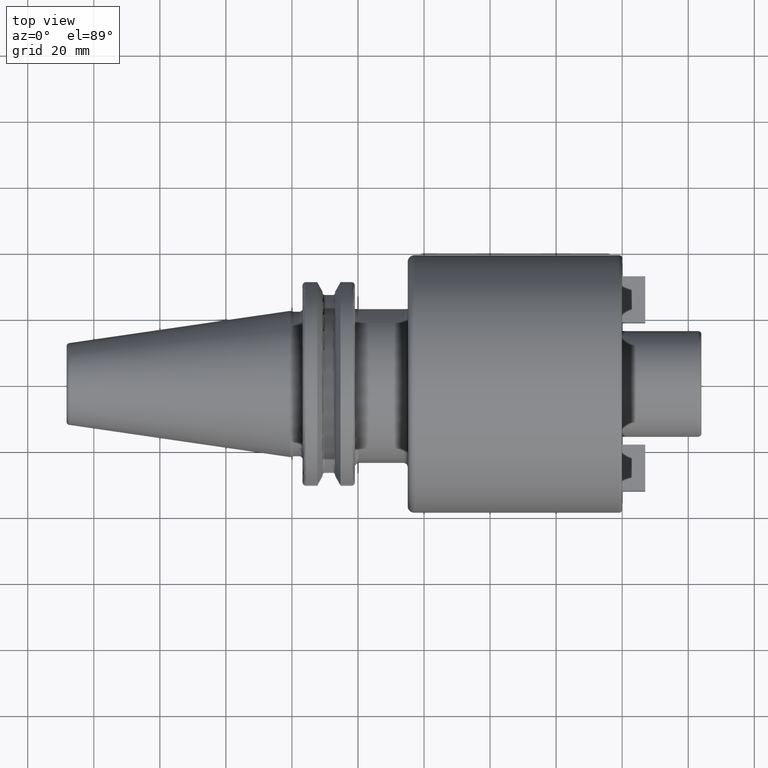
[diagram: clean part render]
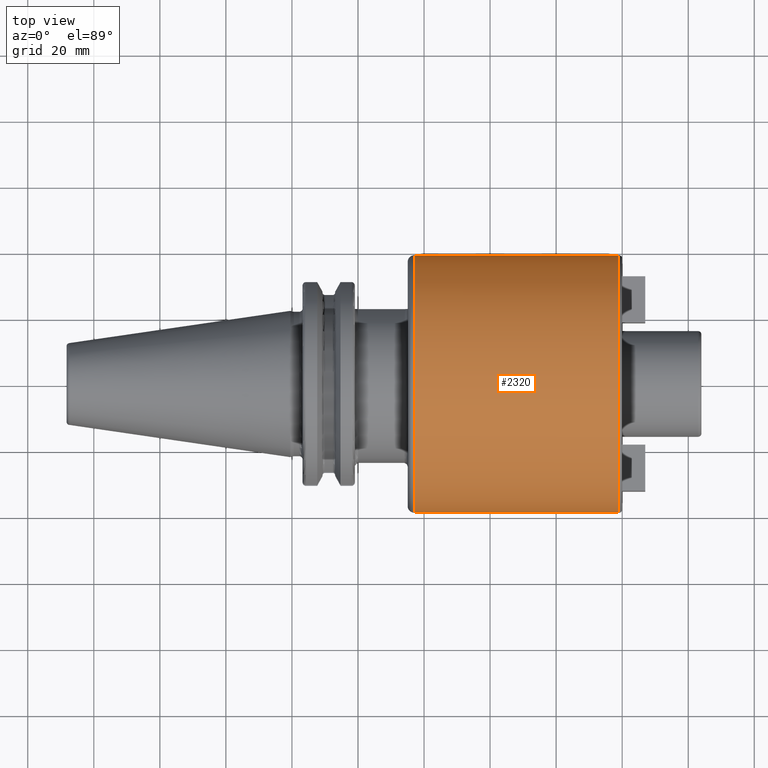
[diagram: same view with one face highlighted and labeled with its STEP entity id]
A machine part, top view. The second image highlights one B-rep face of the part: STEP entity #2320.
In plain terms, the highlighted cylindrical surface (partial cylindrical patch) has radius 39 mm, axis along (1, 0, 0).
Its self-contained STEP definition (entity closure, byte-faithful):
#377=CARTESIAN_POINT('',(9.9E1,0.E0,0.E0));
#378=DIRECTION('',(1.E0,0.E0,0.E0));
#379=DIRECTION('',(0.E0,1.E0,0.E0));
#380=AXIS2_PLACEMENT_3D('',#377,#378,#379);
#382=CARTESIAN_POINT('',(3.705E1,0.E0,0.E0));
#383=DIRECTION('',(-1.E0,0.E0,0.E0));
#384=DIRECTION('',(0.E0,-1.E0,0.E0));
#385=AXIS2_PLACEMENT_3D('',#382,#383,#384);
#402=DIRECTION('',(-1.E0,0.E0,3.337641570171E-13));
#403=VECTOR('',#402,6.195E1);
#404=CARTESIAN_POINT('',(9.9E1,3.9E1,-7.137335452005E-13));
#405=LINE('',#404,#403);
#411=DIRECTION('',(-1.E0,0.E0,-3.338228491948E-13));
#412=VECTOR('',#411,6.195E1);
#413=CARTESIAN_POINT('',(9.9E1,-3.9E1,7.125395145713E-13));
#414=LINE('',#413,#412);
#1754=CARTESIAN_POINT('',(9.9E1,-3.9E1,0.E0));
#1755=CARTESIAN_POINT('',(9.9E1,3.9E1,0.E0));
#1756=VERTEX_POINT('',#1754);
#1757=VERTEX_POINT('',#1755);
#1766=CARTESIAN_POINT('',(3.705E1,3.9E1,1.996295598201E-11));
#1767=VERTEX_POINT('',#1766);
#1822=CARTESIAN_POINT('',(3.705E1,-3.9E1,0.E0));
#1823=VERTEX_POINT('',#1822);
#2306=CARTESIAN_POINT('',(1.38025E1,0.E0,0.E0));
#2307=DIRECTION('',(1.E0,0.E0,0.E0));
#2308=DIRECTION('',(0.E0,-1.E0,0.E0));
#2309=AXIS2_PLACEMENT_3D('',#2306,#2307,#2308);
#2310=CYLINDRICAL_SURFACE('',#2309,3.9E1);
#2312=ORIENTED_EDGE('',*,*,#2311,.T.);
#2314=ORIENTED_EDGE('',*,*,#2313,.T.);
#2315=ORIENTED_EDGE('',*,*,#2300,.T.);
#2317=ORIENTED_EDGE('',*,*,#2316,.F.);
#2318=EDGE_LOOP('',(#2312,#2314,#2315,#2317));
#2319=FACE_OUTER_BOUND('',#2318,.F.);
#2320=ADVANCED_FACE('',(#2319),#2310,.T.);
#381=CIRCLE('',#380,3.9E1);
#386=CIRCLE('',#385,3.9E1);
#2300=EDGE_CURVE('',#1823,#1767,#386,.T.);
#2311=EDGE_CURVE('',#1757,#1756,#381,.T.);
#2313=EDGE_CURVE('',#1756,#1823,#414,.T.);
#2316=EDGE_CURVE('',#1757,#1767,#405,.T.);